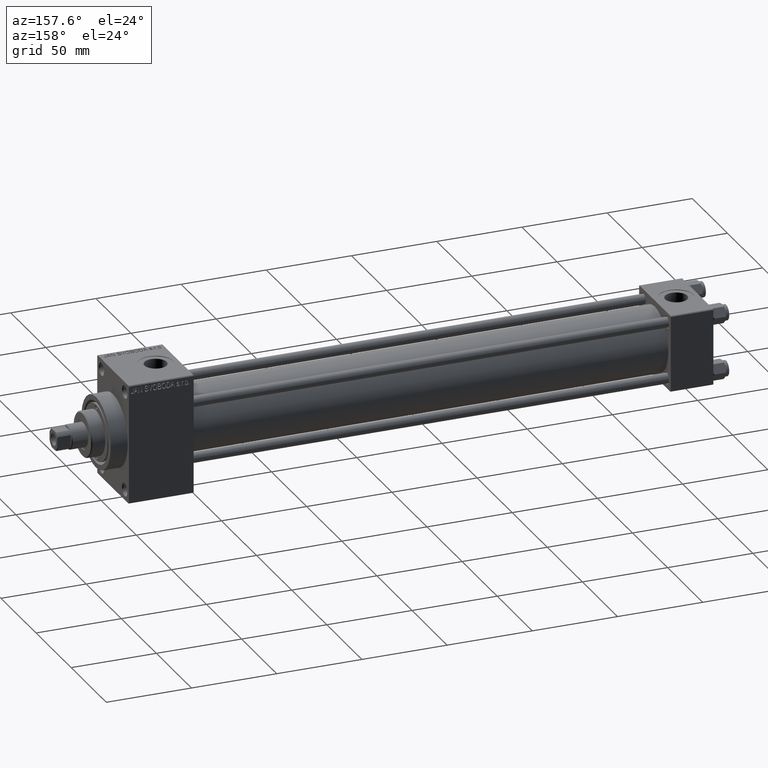
[diagram: clean part render]
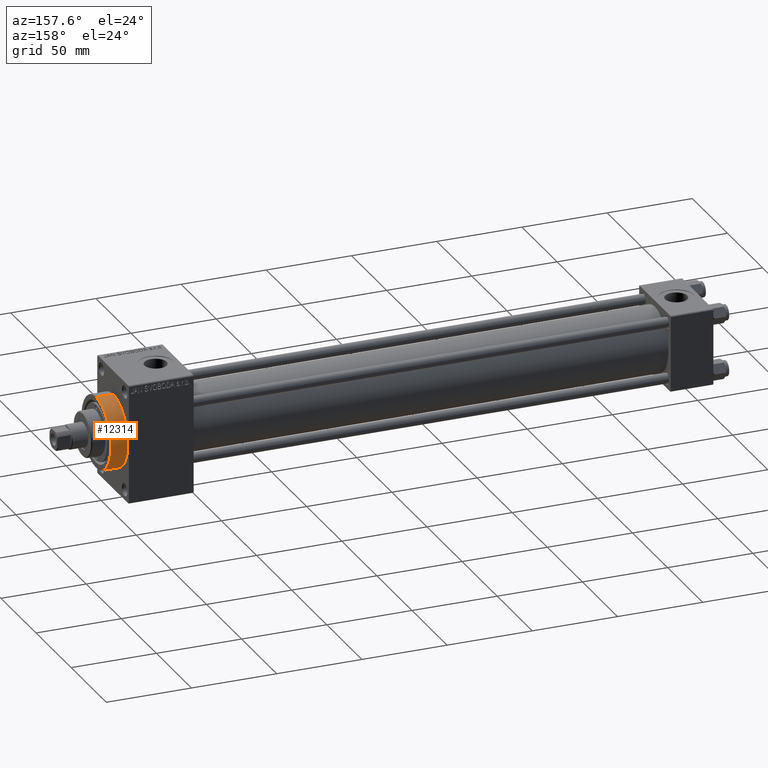
[diagram: same view with one face highlighted and labeled with its STEP entity id]
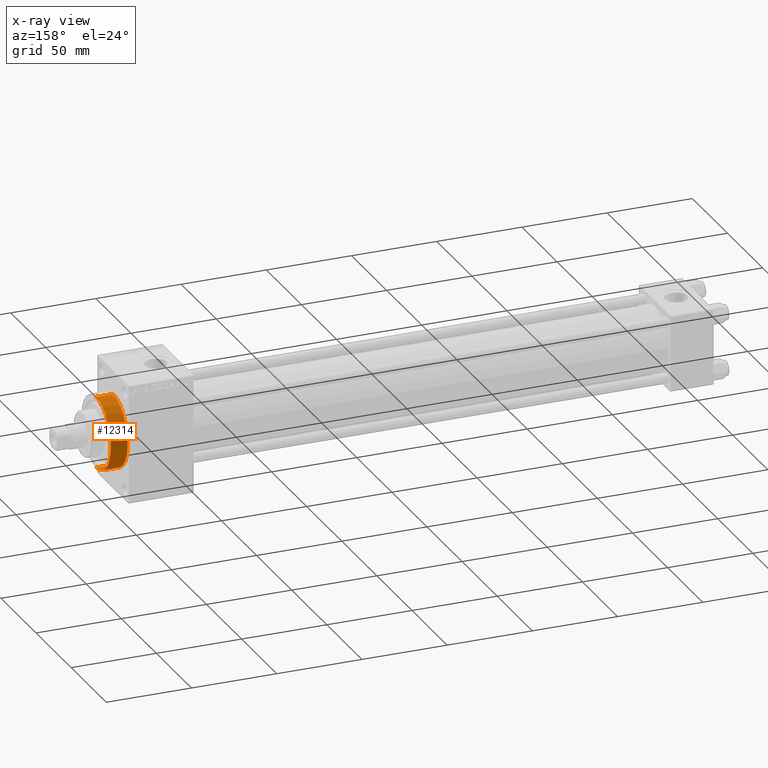
[diagram: x-ray of the same camera — body ghosted, the highlighted face saturated]
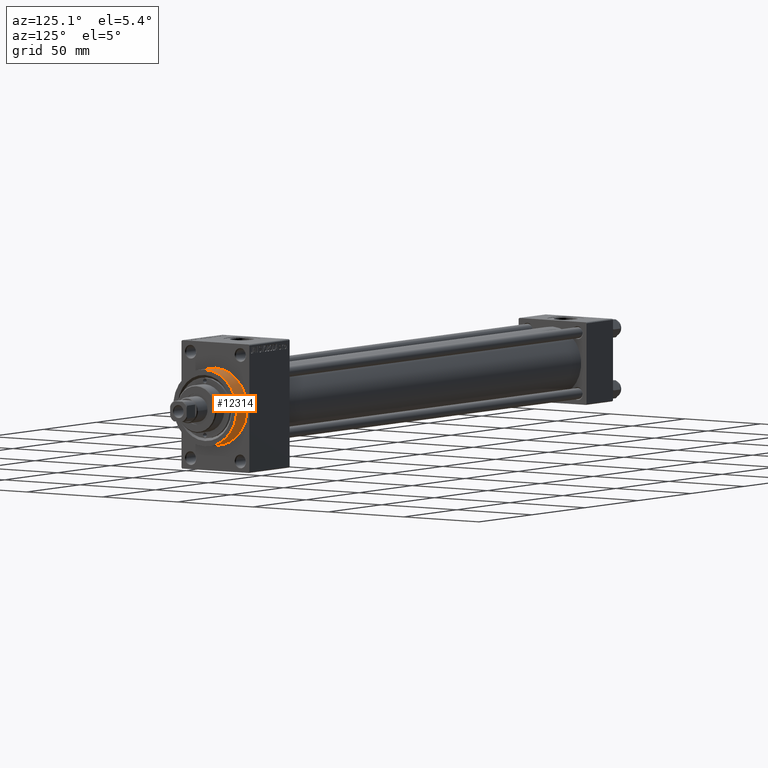
[diagram: same view with one face highlighted and labeled with its STEP entity id]
A machine part, auxiliary view. The second image highlights one B-rep face of the part: STEP entity #12314.
The next image is the same camera in x-ray: the body ghosted, the highlighted face saturated — about 0% of this face is hidden behind the body in this view.
A second angle (auxiliary view) of the same face is appended — the face is thin or edge-on in the first view.
In plain terms, the highlighted cylindrical surface (partial cylindrical patch) has radius 21 mm, axis along (-1, -0, -0).
Its self-contained STEP definition (entity closure, byte-faithful):
#1689 = AXIS2_PLACEMENT_3D ( 'NONE', #41553, #38208, #33657 ) ;
#2811 = CARTESIAN_POINT ( 'NONE',  ( 353.0000000000000568, 2.571758278209441661E-15, -21.00000000000000000 ) ) ;
#7440 = FACE_OUTER_BOUND ( 'NONE', #13741, .T. ) ;
#7677 = DIRECTION ( 'NONE',  ( -1.000000000000000000, -0.000000000000000000, -0.000000000000000000 ) ) ;
#8312 = VECTOR ( 'NONE', #32060, 1000.000000000000000 ) ;
#10911 = ORIENTED_EDGE ( 'NONE', *, *, #41148, .F. ) ;
#11966 = DIRECTION ( 'NONE',  ( 0.000000000000000000, 0.000000000000000000, -1.000000000000000000 ) ) ;
#12113 = ORIENTED_EDGE ( 'NONE', *, *, #46155, .T. ) ;
#12314 = ADVANCED_FACE ( 'NONE', ( #7440 ), #40493, .T. ) ;
#13741 = EDGE_LOOP ( 'NONE', ( #29218, #37756, #12113, #10911 ) ) ;
#14898 = CIRCLE ( 'NONE', #20233, 21.00000000000000000 ) ;
#15599 = VERTEX_POINT ( 'NONE', #41420 ) ;
#18338 = CARTESIAN_POINT ( 'NONE',  ( 353.0000000000000568, 0.000000000000000000, 21.00000000000000000 ) ) ;
#19143 = VECTOR ( 'NONE', #40367, 1000.000000000000000 ) ;
#19371 = CARTESIAN_POINT ( 'NONE',  ( 353.0000000000000568, 0.000000000000000000, 0.000000000000000000 ) ) ;
#20233 = AXIS2_PLACEMENT_3D ( 'NONE', #19371, #44272, #11966 ) ;
#27424 = EDGE_CURVE ( 'NONE', #34479, #40773, #14898, .T. ) ;
#29218 = ORIENTED_EDGE ( 'NONE', *, *, #27424, .F. ) ;
#31568 = CIRCLE ( 'NONE', #1689, 21.00000000000000000 ) ;
#31633 = LINE ( 'NONE', #18338, #19143 ) ;
#32060 = DIRECTION ( 'NONE',  ( -1.000000000000000000, -0.000000000000000000, -0.000000000000000000 ) ) ;
#32531 = LINE ( 'NONE', #2811, #8312 ) ;
#32668 = VERTEX_POINT ( 'NONE', #39943 ) ;
#33324 = DIRECTION ( 'NONE',  ( 0.000000000000000000, 0.000000000000000000, 1.000000000000000000 ) ) ;
#33644 = EDGE_CURVE ( 'NONE', #34479, #32668, #32531, .T. ) ;
#33657 = DIRECTION ( 'NONE',  ( 0.000000000000000000, 0.000000000000000000, -1.000000000000000000 ) ) ;
#33921 = CARTESIAN_POINT ( 'NONE',  ( 353.0000000000000568, 0.000000000000000000, 21.00000000000000000 ) ) ;
#34479 = VERTEX_POINT ( 'NONE', #47111 ) ;
#37470 = AXIS2_PLACEMENT_3D ( 'NONE', #46977, #7677, #33324 ) ;
#37756 = ORIENTED_EDGE ( 'NONE', *, *, #33644, .T. ) ;
#38208 = DIRECTION ( 'NONE',  ( 1.000000000000000000, 0.000000000000000000, 0.000000000000000000 ) ) ;
#39943 = CARTESIAN_POINT ( 'NONE',  ( 343.0000000000000000, 2.571758278209441661E-15, -21.00000000000000000 ) ) ;
#40367 = DIRECTION ( 'NONE',  ( -1.000000000000000000, -0.000000000000000000, -0.000000000000000000 ) ) ;
#40493 = CYLINDRICAL_SURFACE ( 'NONE', #37470, 21.00000000000000000 ) ;
#40773 = VERTEX_POINT ( 'NONE', #33921 ) ;
#41148 = EDGE_CURVE ( 'NONE', #40773, #15599, #31633, .T. ) ;
#41420 = CARTESIAN_POINT ( 'NONE',  ( 343.0000000000000000, 0.000000000000000000, 21.00000000000000000 ) ) ;
#41553 = CARTESIAN_POINT ( 'NONE',  ( 343.0000000000000000, 0.000000000000000000, 0.000000000000000000 ) ) ;
#44272 = DIRECTION ( 'NONE',  ( 1.000000000000000000, 0.000000000000000000, 0.000000000000000000 ) ) ;
#46155 = EDGE_CURVE ( 'NONE', #32668, #15599, #31568, .T. ) ;
#46977 = CARTESIAN_POINT ( 'NONE',  ( 353.0000000000000568, 0.000000000000000000, 0.000000000000000000 ) ) ;
#47111 = CARTESIAN_POINT ( 'NONE',  ( 353.0000000000000568, 2.571758278209441661E-15, -21.00000000000000000 ) ) ;